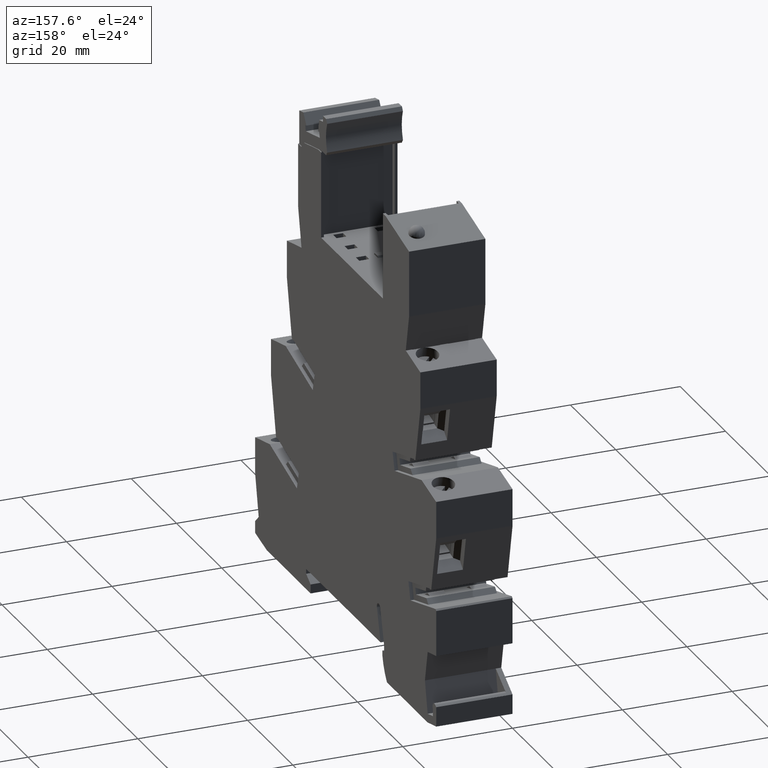
[diagram: clean part render]
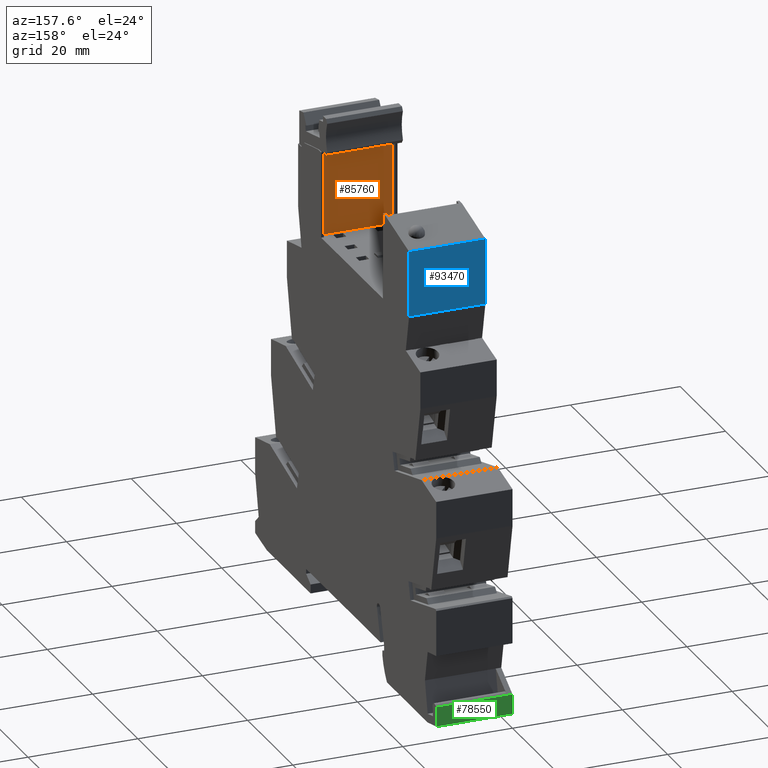
[diagram: same view with three faces highlighted in distinct colors, each labeled with its STEP entity id]
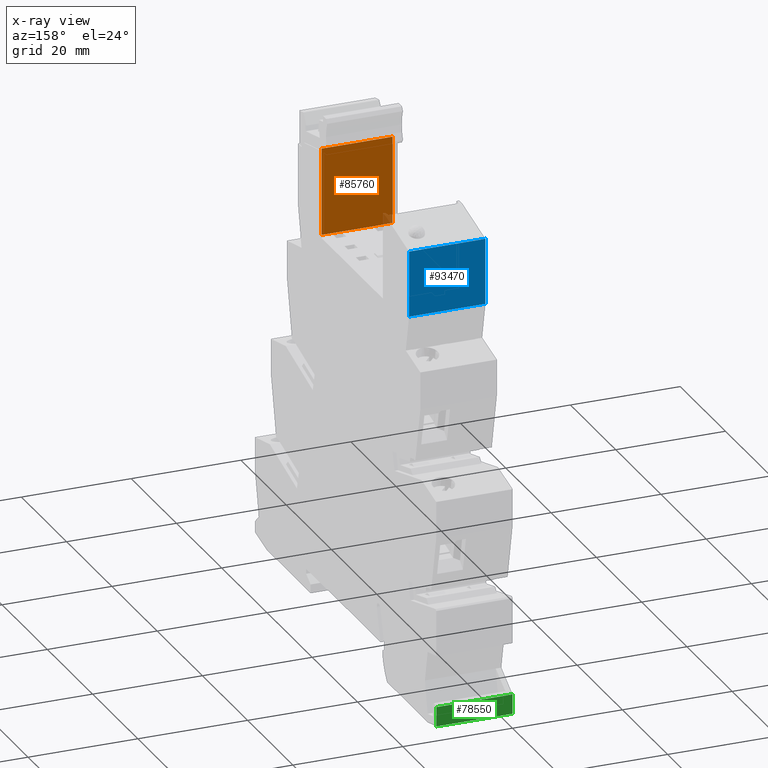
[diagram: x-ray of the same camera — body ghosted, the three highlighted faces saturated]
A machine part, auxiliary view with three faces highlighted in distinct colors.
The next image is the same camera in x-ray (body ghosted, the three faces saturated) — at least one of them is partly hidden behind the body in this view.
Their STEP definitions:

[orange] entity #85760 — the highlighted planar face has unit normal (0, -1, 0).
#72100=CARTESIAN_POINT('',(13.1571600000003,60.9999999789284,
-14.200000000007));
#72110=VERTEX_POINT('',#72100);
#72140=CARTESIAN_POINT('',(13.1571600000003,60.9999999789284,
-13.800000000007));
#72150=DIRECTION('',(5.99642204871645E-15,-8.82503143234995E-30,1.));
#72160=VECTOR('',#72150,1.);
#72170=LINE('',#72140,#72160);
#72180=CARTESIAN_POINT('',(13.1571600056445,60.9999999789284,
-1.30000000000503));
#72190=VERTEX_POINT('',#72180);
#72200=EDGE_CURVE('',#72110,#72190,#72170,.T.);
#85460=CARTESIAN_POINT('',(13.1571600000003,60.9999999789284,
-14.200000000007));
#85470=DIRECTION('',(1.,6.05765437811046E-15,-5.99642204871645E-15));
#85480=DIRECTION('',(5.99642204871645E-15,-8.82503143234995E-30,1.));
#85490=AXIS2_PLACEMENT_3D('',#85460,#85470,#85480);
#85500=PLANE('',#85490);
#85510=ORIENTED_EDGE('',*,*,#72200,.T.);
#85520=CARTESIAN_POINT('',(13.1571600000007,7.105427357601E-15,
-14.2000000000071));
#85530=DIRECTION('',(-6.05765437811046E-15,1.,4.53595020502082E-29));
#85540=VECTOR('',#85530,1.);
#85550=LINE('',#85520,#85540);
#85560=CARTESIAN_POINT('',(13.1571600000002,76.9000000000087,
-14.2000000000071));
#85570=VERTEX_POINT('',#85560);
#85580=EDGE_CURVE('',#72110,#85570,#85550,.T.);
#85590=ORIENTED_EDGE('',*,*,#85580,.F.);
#85600=CARTESIAN_POINT('',(13.1571600000003,76.89999999999,
1.77635683940025E-15));
#85610=DIRECTION('',(5.99642204872442E-15,-1.31743292778328E-12,1.));
#85620=VECTOR('',#85610,1.);
#85630=LINE('',#85600,#85620);
#85640=CARTESIAN_POINT('',(13.1571600000003,76.8999999999917,
-1.30000000000503));
#85650=VERTEX_POINT('',#85640);
#85660=EDGE_CURVE('',#85570,#85650,#85630,.T.);
#85670=ORIENTED_EDGE('',*,*,#85660,.F.);
#85680=CARTESIAN_POINT('',(13.1571600000008,7.105427357601E-15,
-1.30000000000503));
#85690=DIRECTION('',(-6.05765437811046E-15,1.,4.53595020502082E-29));
#85700=VECTOR('',#85690,1.);
#85710=LINE('',#85680,#85700);
#85720=EDGE_CURVE('',#72190,#85650,#85710,.T.);
#85730=ORIENTED_EDGE('',*,*,#85720,.T.);
#85740=EDGE_LOOP('',(#85730,#85670,#85590,#85510));
#85750=FACE_OUTER_BOUND('',#85740,.T.);
#85760=ADVANCED_FACE('',(#85750),#85500,.F.);

[blue] entity #93470 — the highlighted planar face has unit normal (-0, -1, -0).
#2520=CARTESIAN_POINT('',(-26.6928399999995,74.3999999671675,
-14.7000000000029));
#2530=VERTEX_POINT('',#2520);
#2560=CARTESIAN_POINT('',(-26.6928400000009,51.1058216480324,
-14.7000000000029));
#2570=DIRECTION('',(-6.25650887987416E-14,-1.,3.81404366214674E-28));
#2580=VECTOR('',#2570,1.);
#2590=LINE('',#2560,#2580);
#2600=CARTESIAN_POINT('',(-26.6928400000003,62.4210975206028,
-14.7000000000046));
#2610=VERTEX_POINT('',#2600);
#2620=EDGE_CURVE('',#2530,#2610,#2590,.T.);
#11440=CARTESIAN_POINT('',(-26.6928400000011,62.4210975206027,
-0.800000000002909));
#11450=VERTEX_POINT('',#11440);
#11480=CARTESIAN_POINT('',(-26.6928400000018,51.1058216480324,
-0.800000000002909));
#11490=DIRECTION('',(-6.25650887987416E-14,-1.,3.81404366214674E-28));
#11500=VECTOR('',#11490,1.);
#11510=LINE('',#11480,#11500);
#11520=CARTESIAN_POINT('',(-26.6928400000004,74.3999999671675,
-0.800000000002909));
#11530=VERTEX_POINT('',#11520);
#11540=EDGE_CURVE('',#11530,#11450,#11510,.T.);
#66400=CARTESIAN_POINT('',(-26.6928400000011,62.4210975206027,
-0.800000000002907));
#66410=DIRECTION('',(1.83015730011275E-26,2.95423459168867E-13,-1.));
#66420=VECTOR('',#66410,1.);
#66430=LINE('',#66400,#66420);
#66440=EDGE_CURVE('',#11450,#2610,#66430,.T.);
#93310=CARTESIAN_POINT('',(-26.6928399999995,74.3999999671675,
-14.7000000000051));
#93320=DIRECTION('',(1.,-6.25650887987416E-14,6.27941947176454E-14));
#93330=DIRECTION('',(6.25650887987416E-14,1.,-1.79455974478095E-28));
#93340=AXIS2_PLACEMENT_3D('',#93310,#93320,#93330);
#93350=PLANE('',#93340);
#93360=ORIENTED_EDGE('',*,*,#2620,.T.);
#93370=CARTESIAN_POINT('',(-26.6928400000004,74.3999999671675,
-0.800000000002907));
#93380=DIRECTION('',(6.27941947176463E-14,1.3954265492802E-14,-1.));
#93390=VECTOR('',#93380,1.);
#93400=LINE('',#93370,#93390);
#93410=EDGE_CURVE('',#11530,#2530,#93400,.T.);
#93420=ORIENTED_EDGE('',*,*,#93410,.T.);
#93430=ORIENTED_EDGE('',*,*,#11540,.F.);
#93440=ORIENTED_EDGE('',*,*,#66440,.F.);
#93450=EDGE_LOOP('',(#93440,#93430,#93420,#93360));
#93460=FACE_OUTER_BOUND('',#93450,.T.);
#93470=ADVANCED_FACE('',(#93460),#93350,.F.);

[green] entity #78550 — the highlighted planar face has unit normal (-0, -1, -0).
#4690=CARTESIAN_POINT('',(-38.6928400000558,-4.63038475766933,
-14.7000000000029));
#4700=VERTEX_POINT('',#4690);
#4730=CARTESIAN_POINT('',(-38.6928400000523,51.1058216480332,
-14.7000000000029));
#4740=DIRECTION('',(-6.2746413039548E-14,-1.,3.81404366214674E-28));
#4750=VECTOR('',#4740,1.);
#4760=LINE('',#4730,#4750);
#4770=CARTESIAN_POINT('',(-38.692840000056,-8.19999999999071,
-14.7000000000029));
#4780=VERTEX_POINT('',#4770);
#4790=EDGE_CURVE('',#4700,#4780,#4760,.T.);
#9600=CARTESIAN_POINT('',(-38.6928400000569,-8.1999999999907,
-0.800000000002909));
#9610=VERTEX_POINT('',#9600);
#9640=CARTESIAN_POINT('',(-38.6928400000531,51.1058216480332,
-0.800000000002909));
#9650=DIRECTION('',(-6.2746413039548E-14,-1.,3.81404366214674E-28));
#9660=VECTOR('',#9650,1.);
#9670=LINE('',#9640,#9660);
#9680=CARTESIAN_POINT('',(-38.6928400000566,-4.63038475766932,
-0.800000000002909));
#9690=VERTEX_POINT('',#9680);
#9700=EDGE_CURVE('',#9690,#9610,#9670,.T.);
#12410=CARTESIAN_POINT('',(-38.6928400000566,-4.6303847576693,
-0.800000000002907));
#12420=DIRECTION('',(6.27941947176477E-14,3.62542452237742E-14,-1.));
#12430=VECTOR('',#12420,1.);
#12440=LINE('',#12410,#12430);
#12450=EDGE_CURVE('',#9690,#4700,#12440,.T.);
#78260=CARTESIAN_POINT('',(-38.6928400000569,-8.19999999999069,
-0.800000000002907));
#78270=DIRECTION('',(6.43710498660346E-28,1.32198304668728E-14,-1.));
#78280=VECTOR('',#78270,1.);
#78290=LINE('',#78260,#78280);
#78300=EDGE_CURVE('',#9610,#4780,#78290,.T.);
#78440=CARTESIAN_POINT('',(-38.6928400000558,-4.63038475766931,
-14.7000000000058));
#78450=DIRECTION('',(1.,-6.2746413039548E-14,6.27941947176454E-14));
#78460=DIRECTION('',(6.2746413039548E-14,1.,-3.81404366214674E-28));
#78470=AXIS2_PLACEMENT_3D('',#78440,#78450,#78460);
#78480=PLANE('',#78470);
#78490=ORIENTED_EDGE('',*,*,#4790,.T.);
#78500=ORIENTED_EDGE('',*,*,#12450,.T.);
#78510=ORIENTED_EDGE('',*,*,#9700,.F.);
#78520=ORIENTED_EDGE('',*,*,#78300,.F.);
#78530=EDGE_LOOP('',(#78520,#78510,#78500,#78490));
#78540=FACE_OUTER_BOUND('',#78530,.T.);
#78550=ADVANCED_FACE('',(#78540),#78480,.F.);